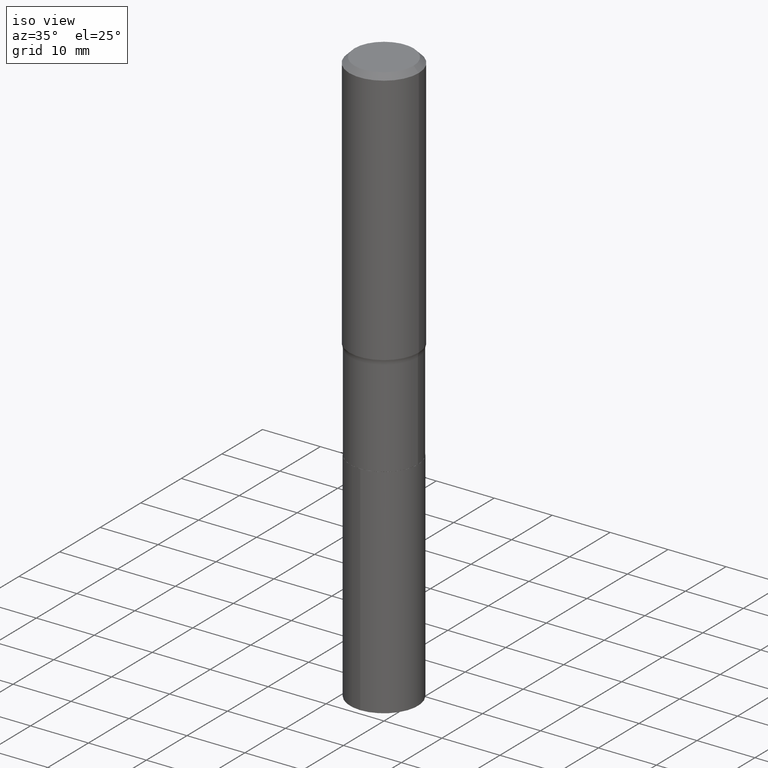
[diagram: clean part render]
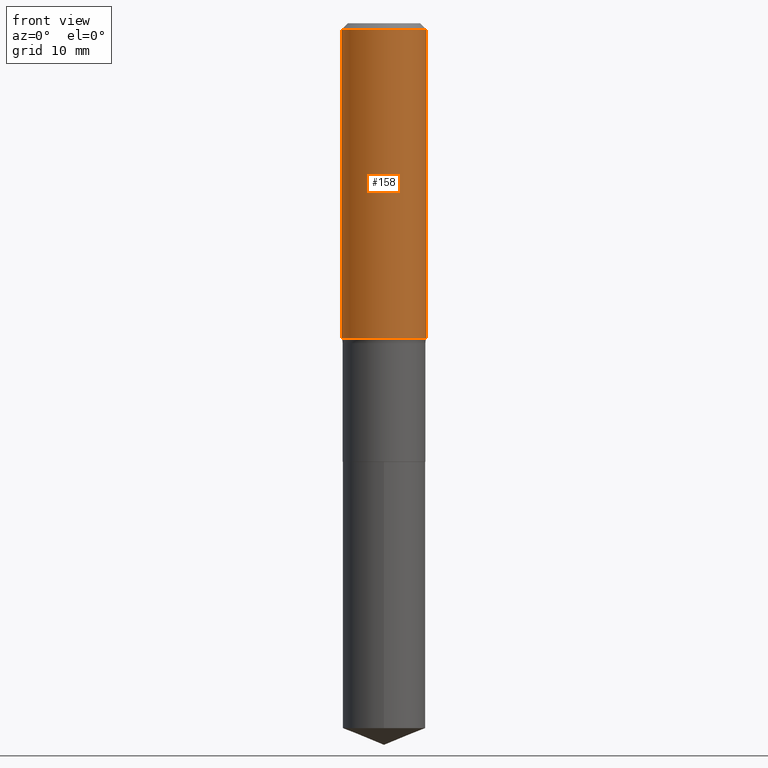
[diagram: tour spotlight — one face highlighted and labeled with its STEP entity id]
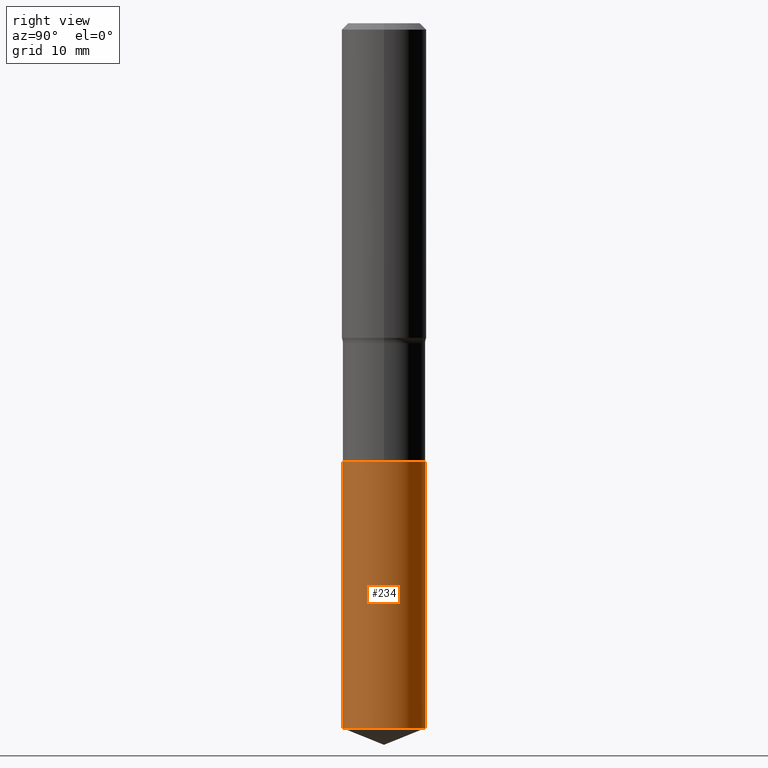
[diagram: tour spotlight — one face highlighted and labeled with its STEP entity id]
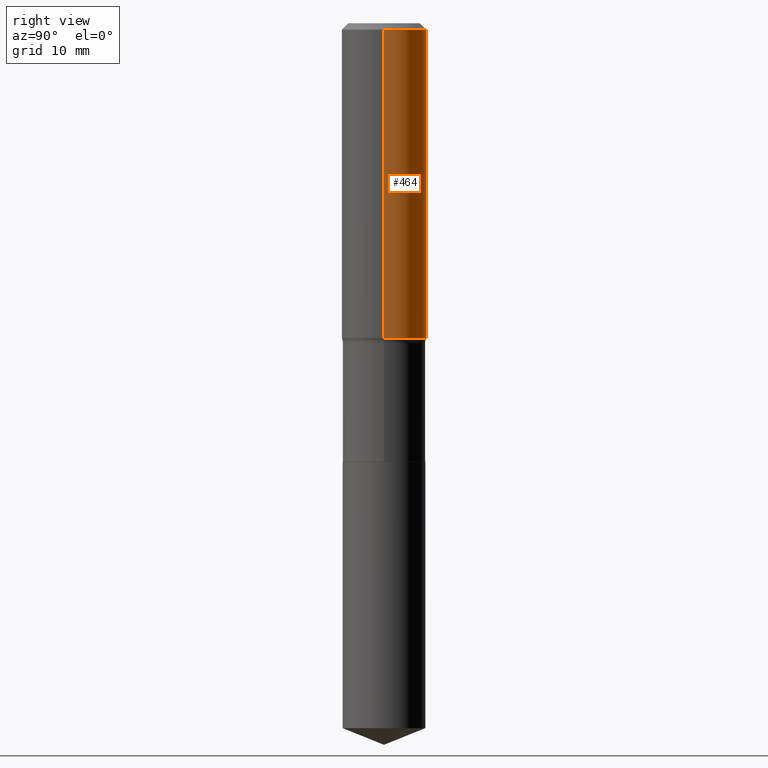
[diagram: tour spotlight — one face highlighted and labeled with its STEP entity id]
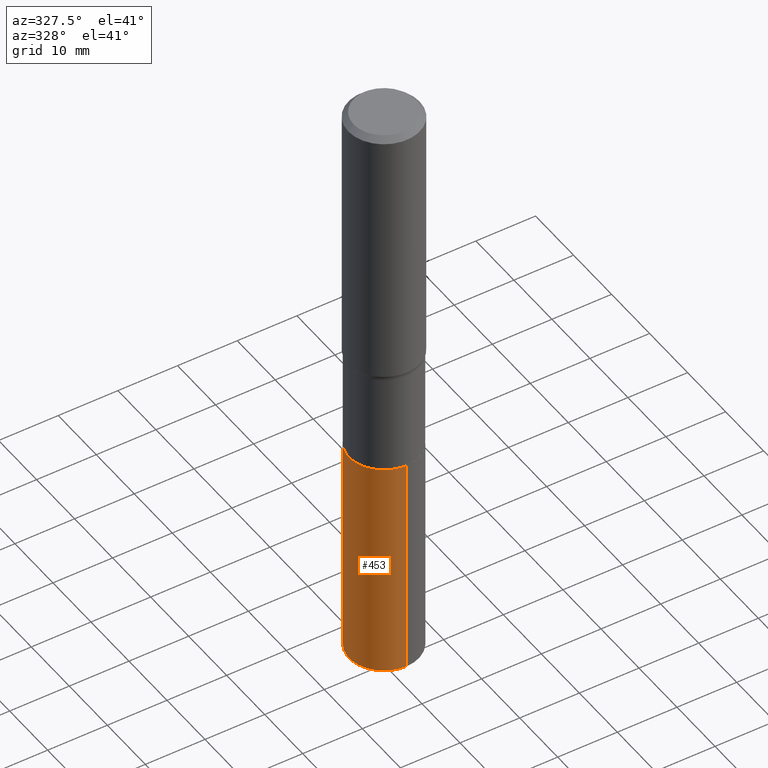
[diagram: tour spotlight — one face highlighted and labeled with its STEP entity id]
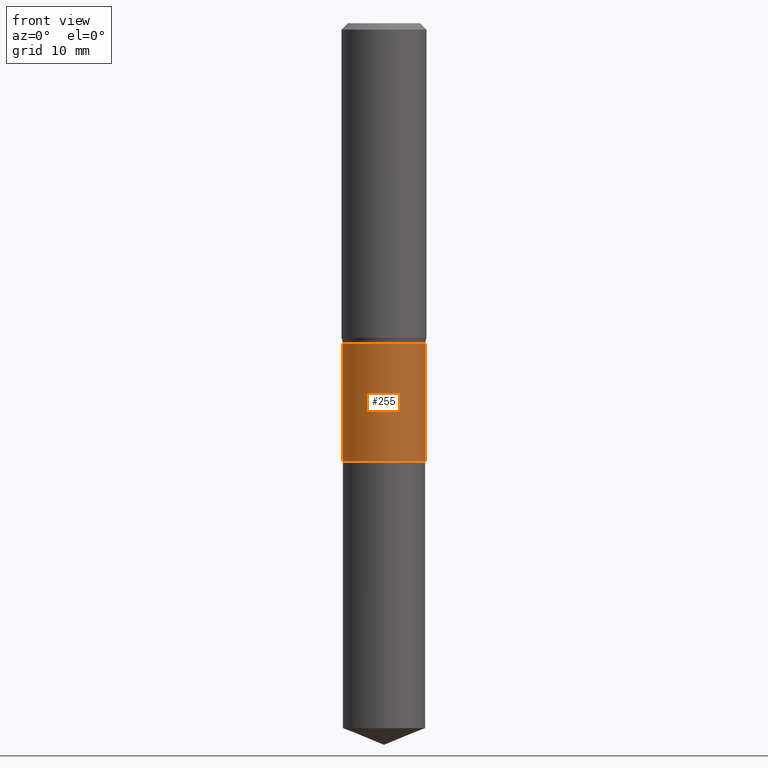
[diagram: tour spotlight — one face highlighted and labeled with its STEP entity id]
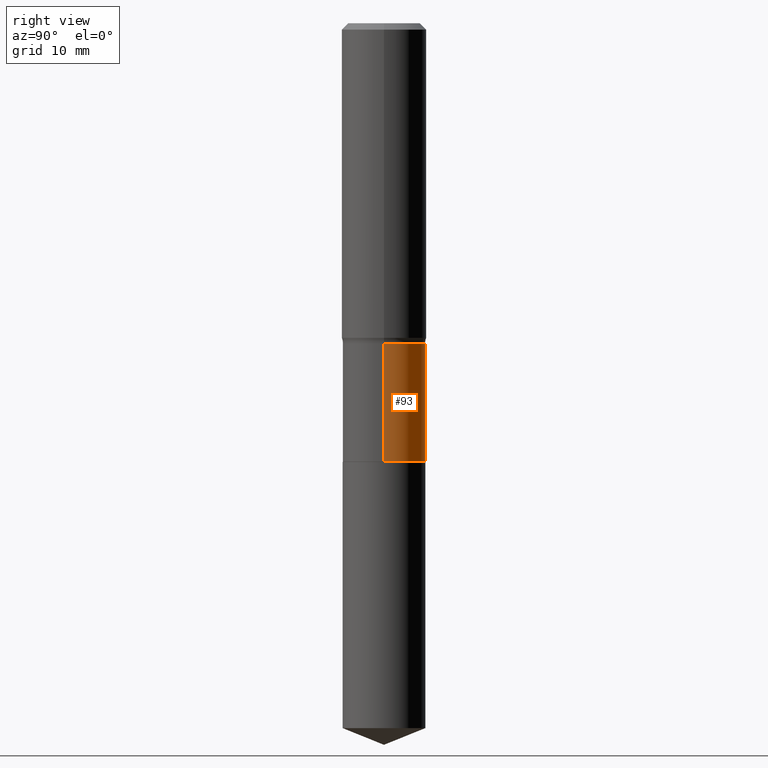
[diagram: tour spotlight — one face highlighted and labeled with its STEP entity id]
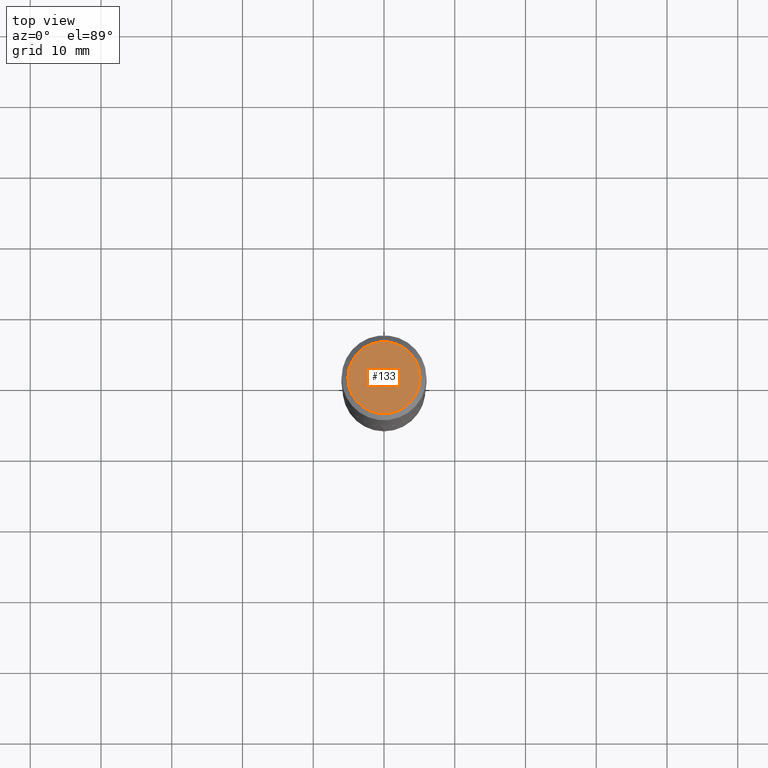
[diagram: tour spotlight — one face highlighted and labeled with its STEP entity id]
A machine part: a face-by-face anatomy tour. The part has 17 B-rep faces; the first image is the clean iso view, then the 7 largest visible faces are spotlighted one at a time (largest first), each with its STEP entity span.

Face 1 — front view, entity #158. In plain terms, the highlighted cylindrical surface (partial cylindrical patch) has radius 5.9995 mm, axis along (-0, 0, 1).
Definition (entity closure, byte-faithful):
#16 = DIRECTION ( 'NONE',  ( -2.445468806185136877E-29, 3.491481338843145188E-15, 1.000000000000000000 ) ) ;
#19 = EDGE_CURVE ( 'NONE', #249, #279, #328, .T. ) ;
#24 = EDGE_CURVE ( 'NONE', #425, #386, #449, .T. ) ;
#32 = DIRECTION ( 'NONE',  ( 1.000000000000000000, -6.982962677686266711E-15, 4.876176775795935793E-29 ) ) ;
#38 = DIRECTION ( 'NONE',  ( 1.000000000000000000, -6.982962677686266711E-15, 0.000000000000000000 ) ) ;
#45 = CARTESIAN_POINT ( 'NONE',  ( 0.2362000000000002153, -7.764499826107920315E-15, -1.751441135774360447 ) ) ;
#89 = DIRECTION ( 'NONE',  ( -2.445468806185136877E-29, 3.491481338843145188E-15, 1.000000000000000000 ) ) ;
#91 = VECTOR ( 'NONE', #16, 39.37007874015748143 ) ;
#111 = CARTESIAN_POINT ( 'NONE',  ( 0.000000000000000000, 0.000000000000000000, 0.000000000000000000 ) ) ;
#137 = EDGE_CURVE ( 'NONE', #425, #249, #317, .T. ) ;
#158 = ADVANCED_FACE ( 'NONE', ( #342 ), #450, .T. ) ;
#161 = EDGE_CURVE ( 'NONE', #386, #279, #385, .T. ) ;
#163 = DIRECTION ( 'NONE',  ( -2.445468806185136597E-29, 3.491481338843145583E-15, 1.000000000000000000 ) ) ;
#178 = CARTESIAN_POINT ( 'NONE',  ( -0.2361999999999999933, -1.441111670871460516E-15, -0.03543000000000021826 ) ) ;
#190 = AXIS2_PLACEMENT_3D ( 'NONE', #447, #353, #38 ) ;
#191 = ORIENTED_EDGE ( 'NONE', *, *, #161, .T. ) ;
#204 = CARTESIAN_POINT ( 'NONE',  ( 0.2362000000000001043, -1.649375784469496920E-15, 1.151752954443000508E-29 ) ) ;
#239 = EDGE_LOOP ( 'NONE', ( #275, #465, #191, #446 ) ) ;
#249 = VERTEX_POINT ( 'NONE', #178 ) ;
#275 = ORIENTED_EDGE ( 'NONE', *, *, #137, .F. ) ;
#279 = VERTEX_POINT ( 'NONE', #412 ) ;
#282 = CARTESIAN_POINT ( 'NONE',  ( 4.283094663405664699E-29, -6.115124041638423001E-15, -1.751441135774360447 ) ) ;
#289 = AXIS2_PLACEMENT_3D ( 'NONE', #282, #163, #427 ) ;
#308 = CARTESIAN_POINT ( 'NONE',  ( -0.2362000000000002153, -4.436822099773065029E-15, -1.751441135774360447 ) ) ;
#313 = AXIS2_PLACEMENT_3D ( 'NONE', #111, #380, #32 ) ;
#317 = LINE ( 'NONE', #454, #91 ) ;
#322 = VECTOR ( 'NONE', #89, 39.37007874015748143 ) ;
#328 = CIRCLE ( 'NONE', #190, 0.2361999999999999933 ) ;
#342 = FACE_OUTER_BOUND ( 'NONE', #239, .T. ) ;
#353 = DIRECTION ( 'NONE',  ( -2.445468806185136597E-29, 3.491481338843145583E-15, 1.000000000000000000 ) ) ;
#380 = DIRECTION ( 'NONE',  ( -2.445468806185136597E-29, 3.491481338843145583E-15, 1.000000000000000000 ) ) ;
#385 = LINE ( 'NONE', #204, #322 ) ;
#386 = VERTEX_POINT ( 'NONE', #45 ) ;
#412 = CARTESIAN_POINT ( 'NONE',  ( 0.2361999999999999933, -1.773078968304709514E-15, -0.03543000000000021826 ) ) ;
#425 = VERTEX_POINT ( 'NONE', #308 ) ;
#427 = DIRECTION ( 'NONE',  ( 1.000000000000000000, -6.982962677686266711E-15, 0.000000000000000000 ) ) ;
#446 = ORIENTED_EDGE ( 'NONE', *, *, #19, .F. ) ;
#447 = CARTESIAN_POINT ( 'NONE',  ( 8.664295980313993487E-31, -1.237031838352134079E-16, -0.03543000000000021826 ) ) ;
#449 = CIRCLE ( 'NONE', #289, 0.2362000000000002153 ) ;
#450 = CYLINDRICAL_SURFACE ( 'NONE', #313, 0.2362000000000001043 ) ;
#454 = CARTESIAN_POINT ( 'NONE',  ( -0.2362000000000001043, 1.678301941865357380E-15, -1.161852468318209317E-29 ) ) ;
#465 = ORIENTED_EDGE ( 'NONE', *, *, #24, .T. ) ;

Face 2 — right view, entity #234. In plain terms, the highlighted cylindrical surface (partial cylindrical patch) has radius 5.8496 mm, axis along (-0, 0, 1).
Definition (entity closure, byte-faithful):
#3 = DIRECTION ( 'NONE',  ( -2.445425754346182208E-29, 3.491542991526886220E-15, 1.000000000000000000 ) ) ;
#9 = EDGE_CURVE ( 'NONE', #115, #235, #407, .T. ) ;
#29 = EDGE_CURVE ( 'NONE', #381, #235, #71, .T. ) ;
#41 = DIRECTION ( 'NONE',  ( -2.445425754346182208E-29, 3.491542991526886614E-15, 1.000000000000000000 ) ) ;
#58 = DIRECTION ( 'NONE',  ( -2.445425754346182208E-29, 3.491542991526886614E-15, 1.000000000000000000 ) ) ;
#71 = LINE ( 'NONE', #340, #474 ) ;
#86 = ORIENTED_EDGE ( 'NONE', *, *, #103, .F. ) ;
#99 = EDGE_CURVE ( 'NONE', #135, #381, #469, .T. ) ;
#103 = EDGE_CURVE ( 'NONE', #135, #115, #347, .T. ) ;
#115 = VERTEX_POINT ( 'NONE', #227 ) ;
#119 = EDGE_LOOP ( 'NONE', ( #270, #492, #459, #86 ) ) ;
#135 = VERTEX_POINT ( 'NONE', #485 ) ;
#156 = CARTESIAN_POINT ( 'NONE',  ( -1.608176304671087313E-15, -0.2303000000000085257, -2.440899999999999181 ) ) ;
#186 = AXIS2_PLACEMENT_3D ( 'NONE', #406, #58, #304 ) ;
#227 = CARTESIAN_POINT ( 'NONE',  ( -1.608176304671087313E-15, -0.2303000000000085257, -2.440899999999999181 ) ) ;
#233 = DIRECTION ( 'NONE',  ( -2.445425754346182208E-29, 3.491542991526886614E-15, 1.000000000000000000 ) ) ;
#234 = ADVANCED_FACE ( 'NONE', ( #264 ), #263, .T. ) ;
#235 = VERTEX_POINT ( 'NONE', #257 ) ;
#257 = CARTESIAN_POINT ( 'NONE',  ( 1.636379920455606805E-15, 0.2302999999999914560, -2.440900000000000514 ) ) ;
#263 = CYLINDRICAL_SURFACE ( 'NONE', #186, 0.2303000000000000047 ) ;
#264 = FACE_OUTER_BOUND ( 'NONE', #119, .T. ) ;
#270 = ORIENTED_EDGE ( 'NONE', *, *, #99, .T. ) ;
#304 = DIRECTION ( 'NONE',  ( -6.982962677686265922E-15, -1.000000000000000000, 3.558638289619100968E-15 ) ) ;
#307 = DIRECTION ( 'NONE',  ( -6.982962677686265922E-15, -1.000000000000000000, 3.558638289619100968E-15 ) ) ;
#312 = AXIS2_PLACEMENT_3D ( 'NONE', #362, #41, #307 ) ;
#340 = CARTESIAN_POINT ( 'NONE',  ( 1.636379920455570123E-15, 0.2302999999999914560, -2.440900000000000514 ) ) ;
#347 = LINE ( 'NONE', #156, #490 ) ;
#362 = CARTESIAN_POINT ( 'NONE',  ( 5.969144809017299038E-29, -8.522356799982232966E-15, -2.440900000000000070 ) ) ;
#378 = CARTESIAN_POINT ( 'NONE',  ( 9.592661170359868034E-29, -1.369596026499982029E-14, -3.922652760190163512 ) ) ;
#381 = VERTEX_POINT ( 'NONE', #428 ) ;
#382 = DIRECTION ( 'NONE',  ( -6.982962677686265922E-15, -1.000000000000000000, 2.372425526412734110E-15 ) ) ;
#406 = CARTESIAN_POINT ( 'NONE',  ( 5.969144809017299038E-29, -8.522356799982232966E-15, -2.440900000000000070 ) ) ;
#407 = CIRCLE ( 'NONE', #312, 0.2303000000000000047 ) ;
#428 = CARTESIAN_POINT ( 'NONE',  ( 1.636379920455606805E-15, 0.2302999999999863767, -3.922652760190163956 ) ) ;
#456 = DIRECTION ( 'NONE',  ( -2.445425754346182208E-29, 3.491542991526886220E-15, 1.000000000000000000 ) ) ;
#459 = ORIENTED_EDGE ( 'NONE', *, *, #9, .F. ) ;
#469 = CIRCLE ( 'NONE', #488, 0.2303000000000000047 ) ;
#474 = VECTOR ( 'NONE', #3, 39.37007874015748143 ) ;
#485 = CARTESIAN_POINT ( 'NONE',  ( -1.608176304671051814E-15, -0.2303000000000137715, -3.922652760190163068 ) ) ;
#488 = AXIS2_PLACEMENT_3D ( 'NONE', #378, #233, #382 ) ;
#490 = VECTOR ( 'NONE', #456, 39.37007874015748143 ) ;
#492 = ORIENTED_EDGE ( 'NONE', *, *, #29, .T. ) ;

Face 3 — right view, entity #464. In plain terms, the highlighted cylindrical surface (partial cylindrical patch) has radius 5.9995 mm, axis along (-0, 0, 1).
Definition (entity closure, byte-faithful):
#1 = EDGE_LOOP ( 'NONE', ( #123, #155, #210, #284 ) ) ;
#16 = DIRECTION ( 'NONE',  ( -2.445468806185136877E-29, 3.491481338843145188E-15, 1.000000000000000000 ) ) ;
#45 = CARTESIAN_POINT ( 'NONE',  ( 0.2362000000000002153, -7.764499826107920315E-15, -1.751441135774360447 ) ) ;
#60 = CARTESIAN_POINT ( 'NONE',  ( 8.664295980313993487E-31, -1.237031838352134079E-16, -0.03543000000000021826 ) ) ;
#75 = CYLINDRICAL_SURFACE ( 'NONE', #467, 0.2362000000000001043 ) ;
#89 = DIRECTION ( 'NONE',  ( -2.445468806185136877E-29, 3.491481338843145188E-15, 1.000000000000000000 ) ) ;
#91 = VECTOR ( 'NONE', #16, 39.37007874015748143 ) ;
#100 = DIRECTION ( 'NONE',  ( -2.445468806185136597E-29, 3.491481338843145583E-15, 1.000000000000000000 ) ) ;
#113 = CARTESIAN_POINT ( 'NONE',  ( 0.000000000000000000, 0.000000000000000000, 0.000000000000000000 ) ) ;
#120 = FACE_OUTER_BOUND ( 'NONE', #1, .T. ) ;
#123 = ORIENTED_EDGE ( 'NONE', *, *, #175, .T. ) ;
#132 = AXIS2_PLACEMENT_3D ( 'NONE', #409, #100, #437 ) ;
#137 = EDGE_CURVE ( 'NONE', #425, #249, #317, .T. ) ;
#155 = ORIENTED_EDGE ( 'NONE', *, *, #137, .T. ) ;
#161 = EDGE_CURVE ( 'NONE', #386, #279, #385, .T. ) ;
#164 = DIRECTION ( 'NONE',  ( 1.000000000000000000, -6.982962677686266711E-15, 4.876176775795935793E-29 ) ) ;
#175 = EDGE_CURVE ( 'NONE', #386, #425, #217, .T. ) ;
#178 = CARTESIAN_POINT ( 'NONE',  ( -0.2361999999999999933, -1.441111670871460516E-15, -0.03543000000000021826 ) ) ;
#204 = CARTESIAN_POINT ( 'NONE',  ( 0.2362000000000001043, -1.649375784469496920E-15, 1.151752954443000508E-29 ) ) ;
#210 = ORIENTED_EDGE ( 'NONE', *, *, #265, .F. ) ;
#217 = CIRCLE ( 'NONE', #132, 0.2362000000000002153 ) ;
#218 = DIRECTION ( 'NONE',  ( -2.445468806185136597E-29, 3.491481338843145583E-15, 1.000000000000000000 ) ) ;
#249 = VERTEX_POINT ( 'NONE', #178 ) ;
#265 = EDGE_CURVE ( 'NONE', #279, #249, #431, .T. ) ;
#274 = DIRECTION ( 'NONE',  ( -2.445468806185136597E-29, 3.491481338843145583E-15, 1.000000000000000000 ) ) ;
#279 = VERTEX_POINT ( 'NONE', #412 ) ;
#284 = ORIENTED_EDGE ( 'NONE', *, *, #161, .F. ) ;
#308 = CARTESIAN_POINT ( 'NONE',  ( -0.2362000000000002153, -4.436822099773065029E-15, -1.751441135774360447 ) ) ;
#317 = LINE ( 'NONE', #454, #91 ) ;
#322 = VECTOR ( 'NONE', #89, 39.37007874015748143 ) ;
#344 = AXIS2_PLACEMENT_3D ( 'NONE', #60, #218, #372 ) ;
#372 = DIRECTION ( 'NONE',  ( 1.000000000000000000, -6.982962677686266711E-15, 0.000000000000000000 ) ) ;
#385 = LINE ( 'NONE', #204, #322 ) ;
#386 = VERTEX_POINT ( 'NONE', #45 ) ;
#409 = CARTESIAN_POINT ( 'NONE',  ( 4.283094663405664699E-29, -6.115124041638423001E-15, -1.751441135774360447 ) ) ;
#412 = CARTESIAN_POINT ( 'NONE',  ( 0.2361999999999999933, -1.773078968304709514E-15, -0.03543000000000021826 ) ) ;
#425 = VERTEX_POINT ( 'NONE', #308 ) ;
#431 = CIRCLE ( 'NONE', #344, 0.2361999999999999933 ) ;
#437 = DIRECTION ( 'NONE',  ( 1.000000000000000000, -6.982962677686266711E-15, 0.000000000000000000 ) ) ;
#454 = CARTESIAN_POINT ( 'NONE',  ( -0.2362000000000001043, 1.678301941865357380E-15, -1.161852468318209317E-29 ) ) ;
#464 = ADVANCED_FACE ( 'NONE', ( #120 ), #75, .T. ) ;
#467 = AXIS2_PLACEMENT_3D ( 'NONE', #113, #274, #164 ) ;

Face 4 — auxiliary view, entity #453. In plain terms, the highlighted cylindrical surface (partial cylindrical patch) has radius 5.8496 mm, axis along (-0, 0, 1).
Definition (entity closure, byte-faithful):
#3 = DIRECTION ( 'NONE',  ( -2.445425754346182208E-29, 3.491542991526886220E-15, 1.000000000000000000 ) ) ;
#14 = EDGE_CURVE ( 'NONE', #235, #115, #375, .T. ) ;
#29 = EDGE_CURVE ( 'NONE', #381, #235, #71, .T. ) ;
#48 = ORIENTED_EDGE ( 'NONE', *, *, #29, .F. ) ;
#71 = LINE ( 'NONE', #340, #474 ) ;
#103 = EDGE_CURVE ( 'NONE', #135, #115, #347, .T. ) ;
#110 = DIRECTION ( 'NONE',  ( -2.445425754346182208E-29, 3.491542991526886614E-15, 1.000000000000000000 ) ) ;
#115 = VERTEX_POINT ( 'NONE', #227 ) ;
#118 = EDGE_CURVE ( 'NONE', #381, #135, #174, .T. ) ;
#124 = DIRECTION ( 'NONE',  ( -2.445425754346182208E-29, 3.491542991526886614E-15, 1.000000000000000000 ) ) ;
#128 = ORIENTED_EDGE ( 'NONE', *, *, #118, .T. ) ;
#135 = VERTEX_POINT ( 'NONE', #485 ) ;
#145 = DIRECTION ( 'NONE',  ( -6.982962677686265922E-15, -1.000000000000000000, 2.372425526412734110E-15 ) ) ;
#156 = CARTESIAN_POINT ( 'NONE',  ( -1.608176304671087313E-15, -0.2303000000000085257, -2.440899999999999181 ) ) ;
#174 = CIRCLE ( 'NONE', #345, 0.2303000000000000047 ) ;
#192 = DIRECTION ( 'NONE',  ( -6.982962677686265922E-15, -1.000000000000000000, 3.558638289619100968E-15 ) ) ;
#214 = AXIS2_PLACEMENT_3D ( 'NONE', #237, #124, #390 ) ;
#227 = CARTESIAN_POINT ( 'NONE',  ( -1.608176304671087313E-15, -0.2303000000000085257, -2.440899999999999181 ) ) ;
#235 = VERTEX_POINT ( 'NONE', #257 ) ;
#237 = CARTESIAN_POINT ( 'NONE',  ( 5.969144809017299038E-29, -8.522356799982232966E-15, -2.440900000000000070 ) ) ;
#238 = CARTESIAN_POINT ( 'NONE',  ( 5.969144809017299038E-29, -8.522356799982232966E-15, -2.440900000000000070 ) ) ;
#257 = CARTESIAN_POINT ( 'NONE',  ( 1.636379920455606805E-15, 0.2302999999999914560, -2.440900000000000514 ) ) ;
#280 = FACE_OUTER_BOUND ( 'NONE', #393, .T. ) ;
#319 = ORIENTED_EDGE ( 'NONE', *, *, #14, .F. ) ;
#340 = CARTESIAN_POINT ( 'NONE',  ( 1.636379920455570123E-15, 0.2302999999999914560, -2.440900000000000514 ) ) ;
#343 = DIRECTION ( 'NONE',  ( -2.445425754346182208E-29, 3.491542991526886614E-15, 1.000000000000000000 ) ) ;
#345 = AXIS2_PLACEMENT_3D ( 'NONE', #370, #110, #145 ) ;
#347 = LINE ( 'NONE', #156, #490 ) ;
#370 = CARTESIAN_POINT ( 'NONE',  ( 9.592661170359868034E-29, -1.369596026499982029E-14, -3.922652760190163512 ) ) ;
#375 = CIRCLE ( 'NONE', #214, 0.2303000000000000047 ) ;
#381 = VERTEX_POINT ( 'NONE', #428 ) ;
#384 = AXIS2_PLACEMENT_3D ( 'NONE', #238, #343, #192 ) ;
#390 = DIRECTION ( 'NONE',  ( -6.982962677686265922E-15, -1.000000000000000000, 3.558638289619100968E-15 ) ) ;
#393 = EDGE_LOOP ( 'NONE', ( #48, #128, #451, #319 ) ) ;
#424 = CYLINDRICAL_SURFACE ( 'NONE', #384, 0.2303000000000000047 ) ;
#428 = CARTESIAN_POINT ( 'NONE',  ( 1.636379920455606805E-15, 0.2302999999999863767, -3.922652760190163956 ) ) ;
#451 = ORIENTED_EDGE ( 'NONE', *, *, #103, .T. ) ;
#453 = ADVANCED_FACE ( 'NONE', ( #280 ), #424, .T. ) ;
#456 = DIRECTION ( 'NONE',  ( -2.445425754346182208E-29, 3.491542991526886220E-15, 1.000000000000000000 ) ) ;
#474 = VECTOR ( 'NONE', #3, 39.37007874015748143 ) ;
#485 = CARTESIAN_POINT ( 'NONE',  ( -1.608176304671051814E-15, -0.2303000000000137715, -3.922652760190163068 ) ) ;
#490 = VECTOR ( 'NONE', #456, 39.37007874015748143 ) ;

Face 5 — front view, entity #255. In plain terms, the highlighted cylindrical surface (partial cylindrical patch) has radius 5.8496 mm, axis along (-0, 0, 1).
Definition (entity closure, byte-faithful):
#27 = FACE_OUTER_BOUND ( 'NONE', #70, .T. ) ;
#34 = CARTESIAN_POINT ( 'NONE',  ( -0.2302999999999999770, 1.636379920455510564E-15, -1.132830751285704610E-29 ) ) ;
#35 = LINE ( 'NONE', #320, #96 ) ;
#46 = ORIENTED_EDGE ( 'NONE', *, *, #472, .T. ) ;
#56 = AXIS2_PLACEMENT_3D ( 'NONE', #98, #373, #180 ) ;
#59 = EDGE_CURVE ( 'NONE', #415, #78, #240, .T. ) ;
#61 = DIRECTION ( 'NONE',  ( 1.000000000000000000, -6.982962677686268288E-15, 0.000000000000000000 ) ) ;
#70 = EDGE_LOOP ( 'NONE', ( #183, #46, #242, #112 ) ) ;
#78 = VERTEX_POINT ( 'NONE', #394 ) ;
#96 = VECTOR ( 'NONE', #458, 39.37007874015748143 ) ;
#98 = CARTESIAN_POINT ( 'NONE',  ( 0.000000000000000000, 0.000000000000000000, 0.000000000000000000 ) ) ;
#109 = AXIS2_PLACEMENT_3D ( 'NONE', #338, #300, #61 ) ;
#112 = ORIENTED_EDGE ( 'NONE', *, *, #226, .F. ) ;
#152 = CARTESIAN_POINT ( 'NONE',  ( 5.967922074614207358E-29, -8.520611059312812251E-15, -2.440399999999999903 ) ) ;
#180 = DIRECTION ( 'NONE',  ( 1.000000000000000000, -6.982962677686266711E-15, 4.876176775795935793E-29 ) ) ;
#183 = ORIENTED_EDGE ( 'NONE', *, *, #59, .F. ) ;
#189 = CARTESIAN_POINT ( 'NONE',  ( 0.2303000000000000047, -1.012878736398395971E-14, -2.440399999999999903 ) ) ;
#208 = CIRCLE ( 'NONE', #311, 0.2303000000000000047 ) ;
#226 = EDGE_CURVE ( 'NONE', #78, #352, #331, .T. ) ;
#236 = DIRECTION ( 'NONE',  ( -2.445468806185136597E-29, 3.491481338843145583E-15, 1.000000000000000000 ) ) ;
#240 = LINE ( 'NONE', #34, #367 ) ;
#241 = CARTESIAN_POINT ( 'NONE',  ( -0.2303000000000000047, -5.733438889574600189E-15, -2.440399999999999903 ) ) ;
#242 = ORIENTED_EDGE ( 'NONE', *, *, #434, .T. ) ;
#255 = ADVANCED_FACE ( 'NONE', ( #27 ), #482, .T. ) ;
#300 = DIRECTION ( 'NONE',  ( -2.445468806185136597E-29, 3.491481338843145583E-15, 1.000000000000000000 ) ) ;
#311 = AXIS2_PLACEMENT_3D ( 'NONE', #152, #236, #316 ) ;
#316 = DIRECTION ( 'NONE',  ( 1.000000000000000000, -6.982962677686265922E-15, 0.000000000000000000 ) ) ;
#320 = CARTESIAN_POINT ( 'NONE',  ( 0.2302999999999999770, -1.608176304671147069E-15, 1.122983511465803858E-29 ) ) ;
#331 = CIRCLE ( 'NONE', #109, 0.2302999999999999214 ) ;
#338 = CARTESIAN_POINT ( 'NONE',  ( 4.355869037576965171E-29, -6.219026560747410438E-15, -1.781199999999999894 ) ) ;
#352 = VERTEX_POINT ( 'NONE', #478 ) ;
#367 = VECTOR ( 'NONE', #486, 39.37007874015748143 ) ;
#373 = DIRECTION ( 'NONE',  ( -2.445468806185136597E-29, 3.491481338843145583E-15, 1.000000000000000000 ) ) ;
#394 = CARTESIAN_POINT ( 'NONE',  ( -0.2302999999999999214, -5.733438889574600189E-15, -1.781199999999999894 ) ) ;
#415 = VERTEX_POINT ( 'NONE', #241 ) ;
#434 = EDGE_CURVE ( 'NONE', #457, #352, #35, .T. ) ;
#457 = VERTEX_POINT ( 'NONE', #189 ) ;
#458 = DIRECTION ( 'NONE',  ( -2.445468806185136877E-29, 3.491481338843145188E-15, 1.000000000000000000 ) ) ;
#472 = EDGE_CURVE ( 'NONE', #415, #457, #208, .T. ) ;
#478 = CARTESIAN_POINT ( 'NONE',  ( 0.2302999999999999214, -7.827202865418557901E-15, -1.781199999999999894 ) ) ;
#482 = CYLINDRICAL_SURFACE ( 'NONE', #56, 0.2302999999999999770 ) ;
#486 = DIRECTION ( 'NONE',  ( -2.445468806185136877E-29, 3.491481338843145188E-15, 1.000000000000000000 ) ) ;

Face 6 — right view, entity #93. In plain terms, the highlighted cylindrical surface (partial cylindrical patch) has radius 5.8496 mm, axis along (-0, 0, 1).
Definition (entity closure, byte-faithful):
#5 = AXIS2_PLACEMENT_3D ( 'NONE', #18, #177, #332 ) ;
#18 = CARTESIAN_POINT ( 'NONE',  ( 5.967922074614207358E-29, -8.520611059312812251E-15, -2.440399999999999903 ) ) ;
#25 = AXIS2_PLACEMENT_3D ( 'NONE', #225, #481, #479 ) ;
#34 = CARTESIAN_POINT ( 'NONE',  ( -0.2302999999999999770, 1.636379920455510564E-15, -1.132830751285704610E-29 ) ) ;
#35 = LINE ( 'NONE', #320, #96 ) ;
#44 = CYLINDRICAL_SURFACE ( 'NONE', #197, 0.2302999999999999770 ) ;
#50 = ORIENTED_EDGE ( 'NONE', *, *, #59, .T. ) ;
#59 = EDGE_CURVE ( 'NONE', #415, #78, #240, .T. ) ;
#68 = DIRECTION ( 'NONE',  ( 1.000000000000000000, -6.982962677686266711E-15, 4.876176775795935793E-29 ) ) ;
#78 = VERTEX_POINT ( 'NONE', #394 ) ;
#79 = FACE_OUTER_BOUND ( 'NONE', #201, .T. ) ;
#85 = CIRCLE ( 'NONE', #25, 0.2302999999999999214 ) ;
#93 = ADVANCED_FACE ( 'NONE', ( #79 ), #44, .T. ) ;
#96 = VECTOR ( 'NONE', #458, 39.37007874015748143 ) ;
#107 = DIRECTION ( 'NONE',  ( -2.445468806185136597E-29, 3.491481338843145583E-15, 1.000000000000000000 ) ) ;
#126 = ORIENTED_EDGE ( 'NONE', *, *, #434, .F. ) ;
#177 = DIRECTION ( 'NONE',  ( -2.445468806185136597E-29, 3.491481338843145583E-15, 1.000000000000000000 ) ) ;
#182 = EDGE_CURVE ( 'NONE', #352, #78, #85, .T. ) ;
#189 = CARTESIAN_POINT ( 'NONE',  ( 0.2303000000000000047, -1.012878736398395971E-14, -2.440399999999999903 ) ) ;
#197 = AXIS2_PLACEMENT_3D ( 'NONE', #418, #107, #68 ) ;
#201 = EDGE_LOOP ( 'NONE', ( #355, #50, #315, #126 ) ) ;
#225 = CARTESIAN_POINT ( 'NONE',  ( 4.355869037576965171E-29, -6.219026560747410438E-15, -1.781199999999999894 ) ) ;
#240 = LINE ( 'NONE', #34, #367 ) ;
#241 = CARTESIAN_POINT ( 'NONE',  ( -0.2303000000000000047, -5.733438889574600189E-15, -2.440399999999999903 ) ) ;
#315 = ORIENTED_EDGE ( 'NONE', *, *, #182, .F. ) ;
#320 = CARTESIAN_POINT ( 'NONE',  ( 0.2302999999999999770, -1.608176304671147069E-15, 1.122983511465803858E-29 ) ) ;
#326 = EDGE_CURVE ( 'NONE', #457, #415, #448, .T. ) ;
#332 = DIRECTION ( 'NONE',  ( 1.000000000000000000, -6.982962677686265922E-15, 0.000000000000000000 ) ) ;
#352 = VERTEX_POINT ( 'NONE', #478 ) ;
#355 = ORIENTED_EDGE ( 'NONE', *, *, #326, .T. ) ;
#367 = VECTOR ( 'NONE', #486, 39.37007874015748143 ) ;
#394 = CARTESIAN_POINT ( 'NONE',  ( -0.2302999999999999214, -5.733438889574600189E-15, -1.781199999999999894 ) ) ;
#415 = VERTEX_POINT ( 'NONE', #241 ) ;
#418 = CARTESIAN_POINT ( 'NONE',  ( 0.000000000000000000, 0.000000000000000000, 0.000000000000000000 ) ) ;
#434 = EDGE_CURVE ( 'NONE', #457, #352, #35, .T. ) ;
#448 = CIRCLE ( 'NONE', #5, 0.2303000000000000047 ) ;
#457 = VERTEX_POINT ( 'NONE', #189 ) ;
#458 = DIRECTION ( 'NONE',  ( -2.445468806185136877E-29, 3.491481338843145188E-15, 1.000000000000000000 ) ) ;
#478 = CARTESIAN_POINT ( 'NONE',  ( 0.2302999999999999214, -7.827202865418557901E-15, -1.781199999999999894 ) ) ;
#479 = DIRECTION ( 'NONE',  ( 1.000000000000000000, -6.982962677686268288E-15, 0.000000000000000000 ) ) ;
#481 = DIRECTION ( 'NONE',  ( -2.445468806185136597E-29, 3.491481338843145583E-15, 1.000000000000000000 ) ) ;
#486 = DIRECTION ( 'NONE',  ( -2.445468806185136877E-29, 3.491481338843145188E-15, 1.000000000000000000 ) ) ;

Face 7 — top view, entity #133. In plain terms, the highlighted planar face has unit normal (0, -0, -1).
Definition (entity closure, byte-faithful):
#2 = DIRECTION ( 'NONE',  ( -2.445468806185136597E-29, 3.491481338843145583E-15, 1.000000000000000000 ) ) ;
#10 = VERTEX_POINT ( 'NONE', #147 ) ;
#28 = DIRECTION ( 'NONE',  ( 2.438088387897960049E-29, -3.491481338843145188E-15, -1.000000000000000000 ) ) ;
#39 = DIRECTION ( 'NONE',  ( -2.445468806185136597E-29, 3.491481338843145583E-15, 1.000000000000000000 ) ) ;
#42 = DIRECTION ( 'NONE',  ( 1.000000000000000000, -6.982962677686266711E-15, 4.876140833081945105E-29 ) ) ;
#72 = DIRECTION ( 'NONE',  ( 1.000000000000000000, -6.982962677686266711E-15, 4.876140833081945105E-29 ) ) ;
#101 = VERTEX_POINT ( 'NONE', #188 ) ;
#133 = ADVANCED_FACE ( 'NONE', ( #296 ), #404, .F. ) ;
#147 = CARTESIAN_POINT ( 'NONE',  ( 0.2007700000000000040, -1.560767496960719672E-15, 4.096137381458473721E-18 ) ) ;
#173 = AXIS2_PLACEMENT_3D ( 'NONE', #419, #2, #72 ) ;
#188 = CARTESIAN_POINT ( 'NONE',  ( -0.2007700000000000040, 1.463821008716677338E-15, 4.096137381438094301E-18 ) ) ;
#222 = CIRCLE ( 'NONE', #301, 0.2007700000000000040 ) ;
#269 = AXIS2_PLACEMENT_3D ( 'NONE', #305, #28, #341 ) ;
#286 = EDGE_LOOP ( 'NONE', ( #323, #306 ) ) ;
#296 = FACE_OUTER_BOUND ( 'NONE', #286, .T. ) ;
#301 = AXIS2_PLACEMENT_3D ( 'NONE', #452, #39, #42 ) ;
#305 = CARTESIAN_POINT ( 'NONE',  ( -5.008488096090115757E-47, 7.150793614331959538E-33, 2.048068690724057264E-18 ) ) ;
#306 = ORIENTED_EDGE ( 'NONE', *, *, #491, .T. ) ;
#323 = ORIENTED_EDGE ( 'NONE', *, *, #489, .T. ) ;
#330 = CIRCLE ( 'NONE', #173, 0.2007700000000000040 ) ;
#341 = DIRECTION ( 'NONE',  ( -1.000000000000000000, 6.982962677686265922E-15, -4.876176775795935793E-29 ) ) ;
#404 = PLANE ( 'NONE',  #269 ) ;
#419 = CARTESIAN_POINT ( 'NONE',  ( -1.001697619218023151E-46, 1.430158722866391908E-32, 4.096137381448114529E-18 ) ) ;
#452 = CARTESIAN_POINT ( 'NONE',  ( -1.001697619218023151E-46, 1.430158722866391908E-32, 4.096137381448114529E-18 ) ) ;
#489 = EDGE_CURVE ( 'NONE', #101, #10, #222, .T. ) ;
#491 = EDGE_CURVE ( 'NONE', #10, #101, #330, .T. ) ;